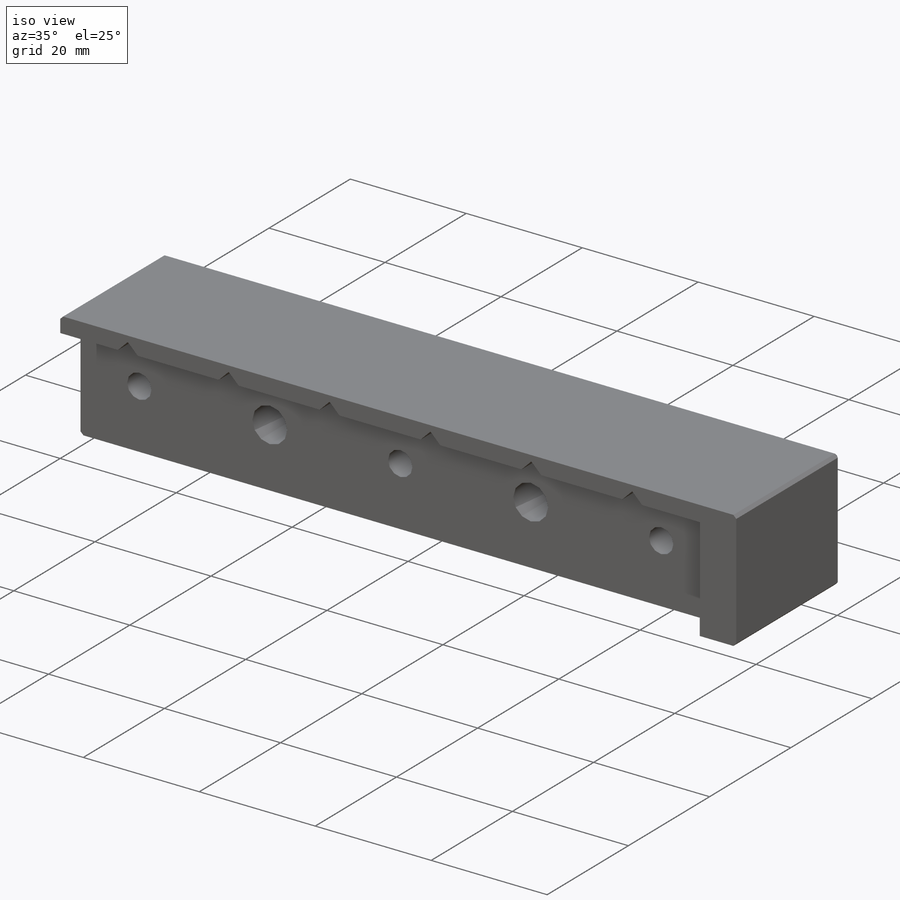
[diagram: iso view]
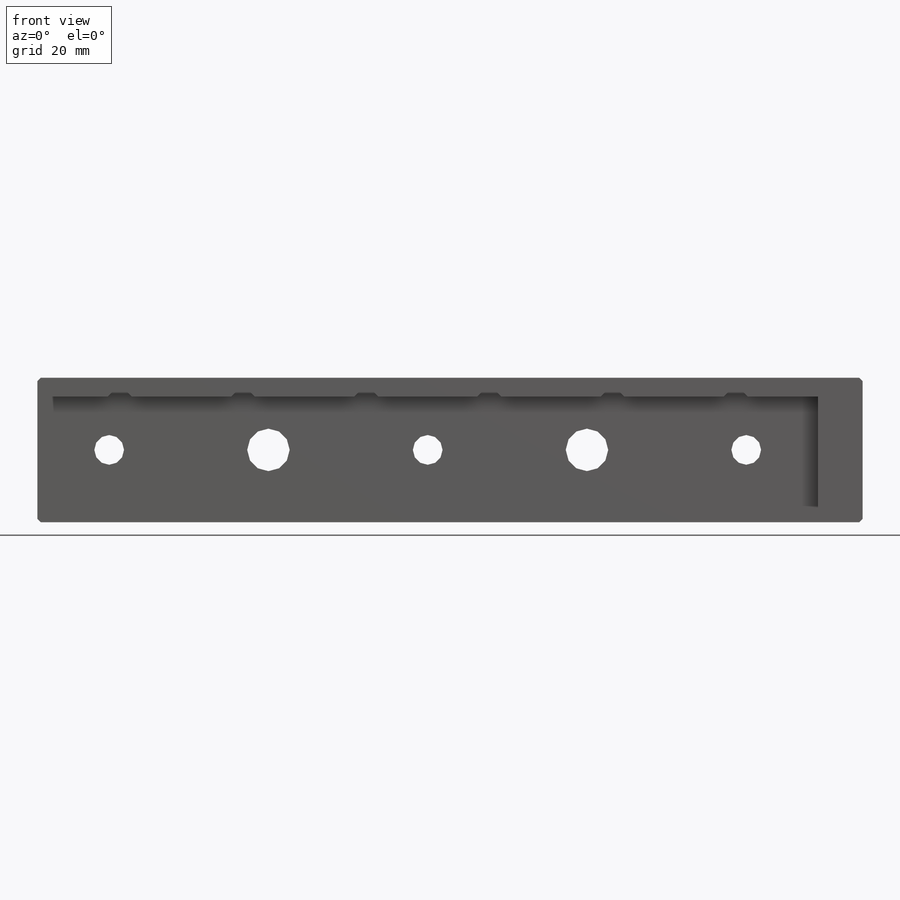
[diagram: front view]
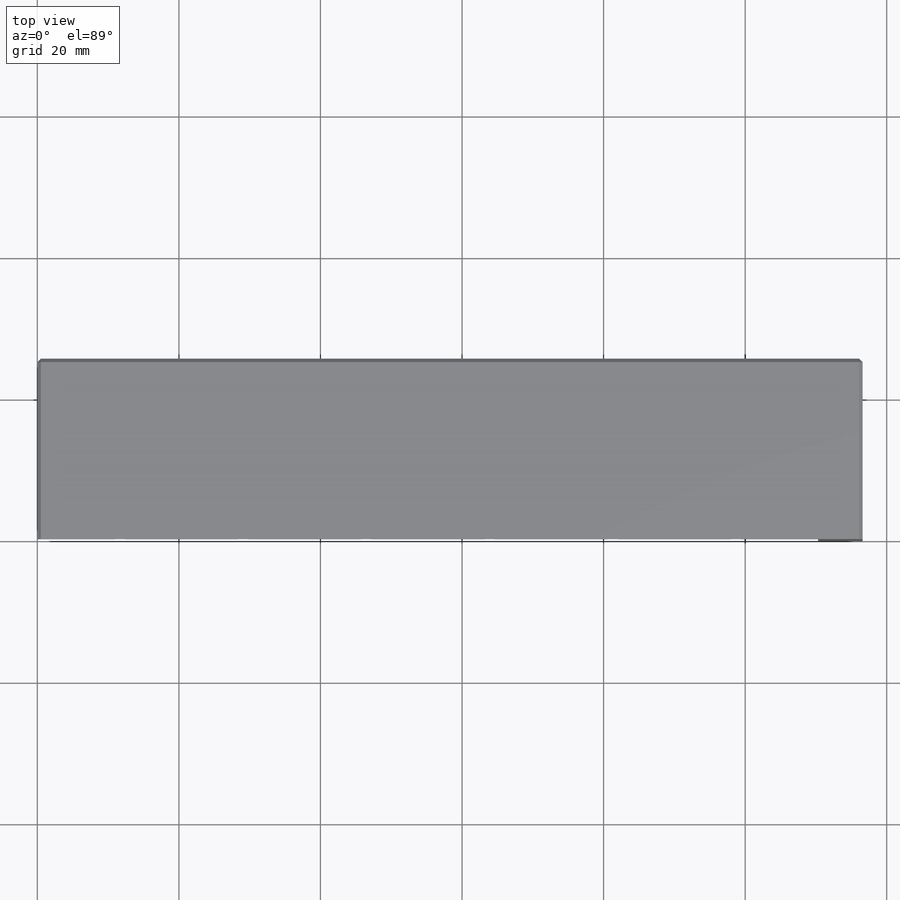
[diagram: top view]
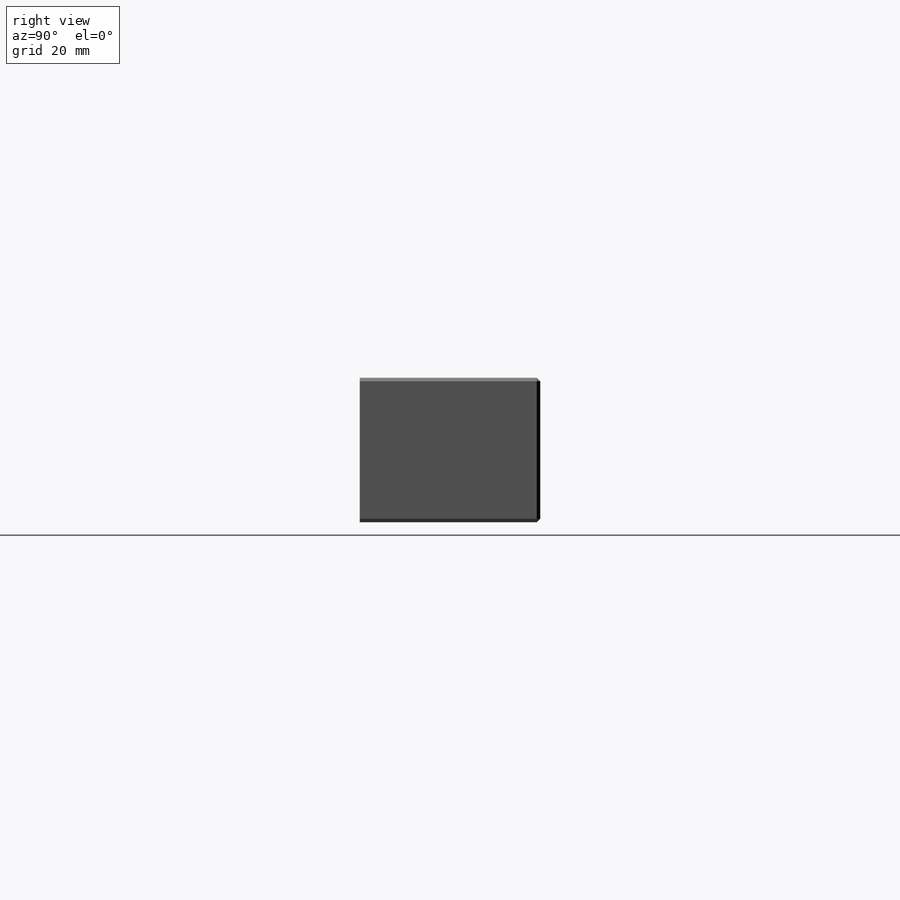
[diagram: right view]
SOLIDWORKS PART (.sldprt)
format: sldprt  version: not decoded by parser v0  size: 423,424 bytes
history: native  units: mm
features: sketch x6, plane x3, thread x3, hole x2, material x1, extrude x1, cut_extrude x1, chamfer x1 (+10 scaffold rows collapsed)
feature tree (28):
  scaffold x10  (default folders/planes/origin — collapsed)
  material  "Материал <не указан>"
  plane  "Спереди"
  plane  "Сверху"
  plane  "Справа"
  sketch  "Эскиз2"  dims[D1=116.6mm D2=20.43mm]
  extrude  "Бобышка-Вытянуть1"  Depth=25.5mm
  sketch  "Эскиз1"  dims[c1.D1=3.0mm c1.D2=6.18mm c1.D3=43.5mm c1.D5=26.1mm c1.D6=8.7mm c2.D1=~110.302875mm c2.D2=~9.954238mm c2.D6=~11.651437mm c2.D7=17.4mm c2.D8=12.5mm c2.D9=~9.954238mm c2.D10=~11.651437mm c2.D11=~29.051437mm c2.D12=~46.451437mm c2.D13=~81.251437mm c2.D14=~98.651437mm c3.D1=3.0mm c3.D2=~1.697199mm c4.D2=90.0deg c4.D6=17.4mm c4.D7=~12.95186mm c4.D8=~11.254661mm c4.D3=~19.127199mm c4.D4=17.8mm c4.D5=~11.254661mm c5.D3=1.7mm c5.D5=9.95mm c5.D7=110.3mm c5.D8=~6.297125mm c5.D9=13.35mm c5.D1=17.73mm c5.D4=13.35mm c6.D8=1.0mm c6.D1=22.5mm c6.D3=90.0mm c6.D9=7.5mm c6.D11=~2.395376mm c6.D12=17.4mm c6.D13=7.485mm c6.D14=~1.59099mm c7.D14=90.0deg c7.D15=~1.693787mm c7.D16=~9.956213mm c7.D17=~14.012426mm c7.D10=~142.484232mm c7.D11=~1.693787mm c8.D11=90.0deg c8.D12=~1.693787mm c8.D13=17.715mm c8.D14=110.285mm c8.D15=~9.956213mm c8.D16=~2.395376mm c8.D17=~14.012426mm c8.D18=~9.941213mm c9.D16=~3.387574mm c9.D18=~9.941213mm c9.D19=7.485mm c9.D10=0.015mm]
  cut_extrude  "Вырез-Вытянуть1"  Depth=5mm
  hole  "Отверстие обработанное метчиком M5x0.81"  [1 undecoded]
  sketch  "Эскиз4"  dims[c1.D1=~47.287128mm c1.D2=~41.807478mm c2.D1=~55.151437mm c2.D2=12.5mm c3.D1=90.0mm c3.D2=~55.151437mm c3.D3=~10.151437mm c3.D4=~32.651437mm c3.D5=~55.151437mm c3.D6=~77.651437mm c3.D7=~100.151437mm c3.D8=5.0mm c4.D2=7.5mm c4.D3=22.5mm c4.D4=22.5mm c4.D5=22.5mm c4.D6=~41.020755mm c5.D3=22.5mm c5.D2=7.5mm]
  sketch  "Эскиз6"  dims[hole-wizard template sketch: 59 standard entries collapsed; hole parameters kept: c18.Диаметр проходного сверла=4.2mm c18.Глубина проходного сверла=20.5mm]
  thread  "Отверстие резьбы5"  Diameter=5mm  [1 undecoded]
  thread  "Отверстие резьбы6"  Diameter=5mm  [1 undecoded]
  thread  "Отверстие резьбы7"  Diameter=5mm  [1 undecoded]
  hole  "Отверстия под штифты Ø6.0 мм1"  [1 undecoded]
  sketch  "Эскиз7"  dims[D1=7.5mm D2=22.5mm D3=~53.557163mm]
  sketch  "Эскиз8"  dims[hole-wizard template sketch: 59 standard entries collapsed; hole parameters kept: c18.Диаметр сквозного отверстия=6.0mm c18.Глубина сквозного отверстия=20.5mm]
  chamfer  "Фаска1"  Distance=0.5mm Angle=45deg
decode coverage: 12 of 14 modeling features carry decoded parameters
note: ~ marks probable driven/reference dimensions
note: 5 parameter values undecoded
note: suppression state not decoded; provenance and decode notes live in map.json
